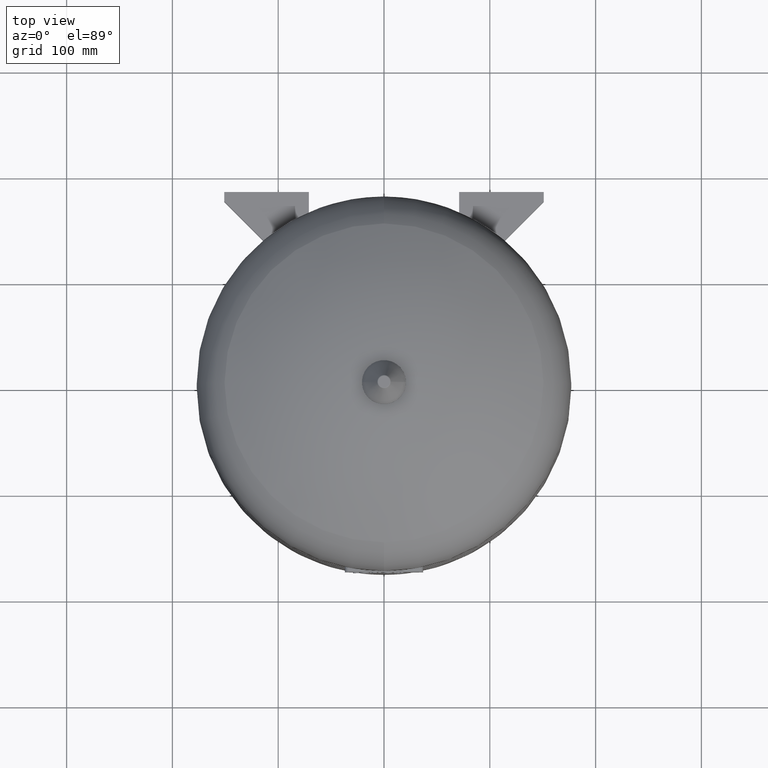
[diagram: clean part render]
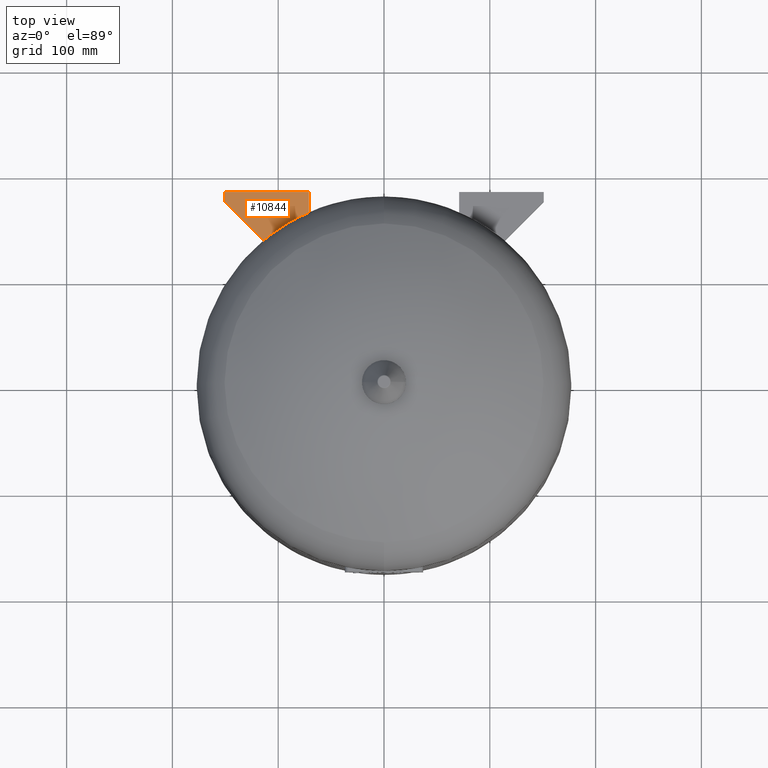
[diagram: same view with one face highlighted and labeled with its STEP entity id]
A machine part, top view. The second image highlights one B-rep face of the part: STEP entity #10844.
In plain terms, the highlighted face is a freeform B-spline surface patch.
Its self-contained STEP definition (entity closure, byte-faithful):
#10540=CARTESIAN_POINT('',(-71.0,162.13574559608995,315.5));
#10541=VERTEX_POINT('',#10540);
#10548=CARTESIAN_POINT('',(-113.6735737837013,135.67357378370127,315.5));
#10549=VERTEX_POINT('',#10548);
#10550=CARTESIAN_POINT('',(-5.684342E-014,-2.755455E-015,315.5));
#10551=DIRECTION('',(4.887835E-018,-5.833810E-018,1.0));
#10552=DIRECTION('',(-0.642223580698877,0.766517366009612,7.610799E-018));
#10553=AXIS2_PLACEMENT_3D('',#10550,#10551,#10552);
#10554=CIRCLE('',#10553,176.99999999999994);
#10555=EDGE_CURVE('',#10541,#10549,#10554,.T.);
#10643=CARTESIAN_POINT('',(-151.0,173.0,315.5));
#10644=VERTEX_POINT('',#10643);
#10645=CARTESIAN_POINT('',(-113.6735737837013,135.67357378370127,315.5));
#10646=DIRECTION('',(-0.707106781186547,0.707106781186548,0.0));
#10647=VECTOR('',#10646,52.787538190008291);
#10648=LINE('',#10645,#10647);
#10649=EDGE_CURVE('',#10549,#10644,#10648,.T.);
#10794=CARTESIAN_POINT('',(-71.0,182.0,315.5));
#10795=VERTEX_POINT('',#10794);
#10802=CARTESIAN_POINT('',(-71.000000000000014,162.13574559608995,315.5));
#10803=DIRECTION('',(0.0,1.0,0.0));
#10804=VECTOR('',#10803,19.864254403910053);
#10805=LINE('',#10802,#10804);
#10806=EDGE_CURVE('',#10541,#10795,#10805,.T.);
#10820=CARTESIAN_POINT('',(-71.000000000000014,182.0,315.5));
#10821=CARTESIAN_POINT('',(-151.0,182.0,315.5));
#10822=CARTESIAN_POINT('',(-71.000000000000014,135.67357378370124,315.5));
#10823=CARTESIAN_POINT('',(-151.0,135.67357378370127,315.5));
#10824=B_SPLINE_SURFACE_WITH_KNOTS('',1,1,((#10820,#10822),(#10821,#10823)),.UNSPECIFIED.,.F.,.F.,.U.,(2,2),(2,2),(0.0,79.999999999999986),(0.0,46.326426216298756),.UNSPECIFIED.);
#10825=ORIENTED_EDGE('',*,*,#10555,.F.);
#10826=ORIENTED_EDGE('',*,*,#10806,.T.);
#10827=CARTESIAN_POINT('',(-151.0,182.0,315.5));
#10828=VERTEX_POINT('',#10827);
#10829=CARTESIAN_POINT('',(-71.0,182.0,315.5));
#10830=DIRECTION('',(-1.0,0.0,0.0));
#10831=VECTOR('',#10830,80.0);
#10832=LINE('',#10829,#10831);
#10833=EDGE_CURVE('',#10795,#10828,#10832,.T.);
#10834=ORIENTED_EDGE('',*,*,#10833,.T.);
#10835=CARTESIAN_POINT('',(-151.0,173.0,315.5));
#10836=DIRECTION('',(0.0,1.0,0.0));
#10837=VECTOR('',#10836,9.0);
#10838=LINE('',#10835,#10837);
#10839=EDGE_CURVE('',#10644,#10828,#10838,.T.);
#10840=ORIENTED_EDGE('',*,*,#10839,.F.);
#10841=ORIENTED_EDGE('',*,*,#10649,.F.);
#10842=EDGE_LOOP('',(#10825,#10826,#10834,#10840,#10841));
#10843=FACE_OUTER_BOUND('',#10842,.T.);
#10844=ADVANCED_FACE('',(#10843),#10824,.T.);